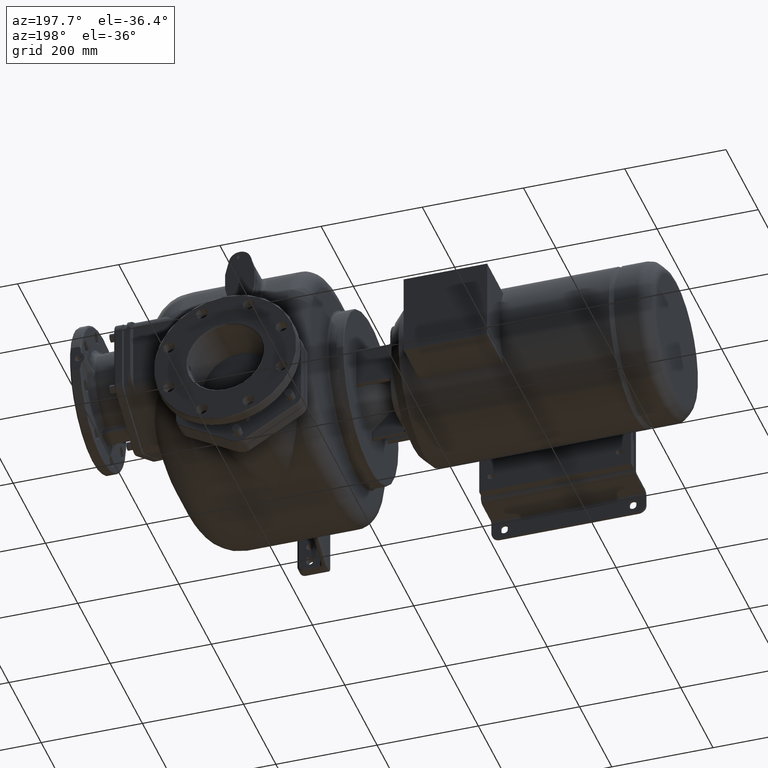
[diagram: clean part render]
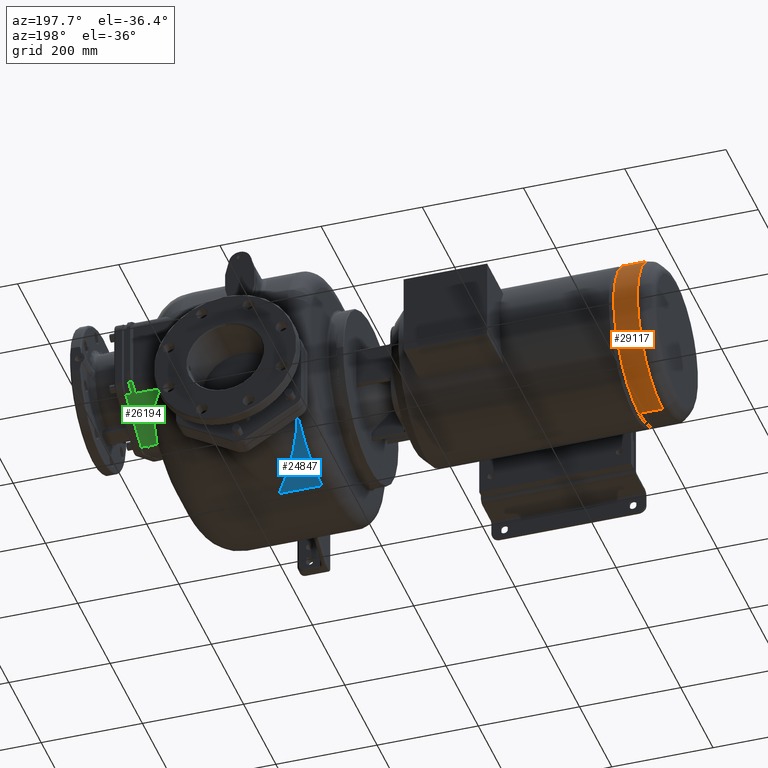
[diagram: same view with three faces highlighted in distinct colors, each labeled with its STEP entity id]
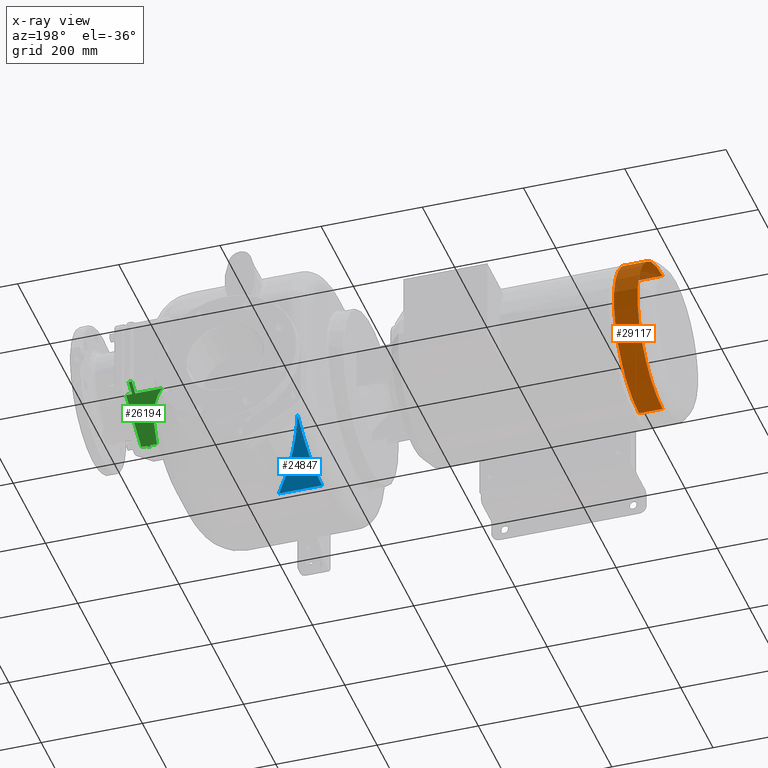
[diagram: x-ray of the same camera — body ghosted, the three highlighted faces saturated]
A machine part, auxiliary view with three faces highlighted in distinct colors.
The next image is the same camera in x-ray (body ghosted, the three faces saturated) — at least one of them is partly hidden behind the body in this view.
Their STEP definitions:

[orange] entity #29117 — the highlighted cylindrical surface (partial cylindrical patch) has radius 155.5 mm, axis along (1, 0, 0).
#11143=CARTESIAN_POINT('',(-7.652157673827E2,2.3E2,0.E0));
#11144=DIRECTION('',(1.E0,0.E0,0.E0));
#11145=DIRECTION('',(0.E0,0.E0,-1.E0));
#11146=AXIS2_PLACEMENT_3D('',#11143,#11144,#11145);
#11148=DIRECTION('',(1.E0,2.068548104365E-14,0.E0));
#11149=VECTOR('',#11148,4.671576738268E1);
#11150=CARTESIAN_POINT('',(-7.652157673827E2,2.3E2,-1.555E2));
#11151=LINE('',#11150,#11149);
#11152=CARTESIAN_POINT('',(-7.185E2,2.3E2,0.E0));
#11153=DIRECTION('',(1.E0,0.E0,0.E0));
#11154=DIRECTION('',(0.E0,0.E0,-1.E0));
#11155=AXIS2_PLACEMENT_3D('',#11152,#11153,#11154);
#11172=DIRECTION('',(1.E0,-2.129387754493E-14,0.E0));
#11173=VECTOR('',#11172,4.671576738268E1);
#11174=CARTESIAN_POINT('',(-7.652157673827E2,2.3E2,1.555E2));
#11175=LINE('',#11174,#11173);
#17196=CARTESIAN_POINT('',(-7.185E2,2.3E2,-1.555E2));
#17197=CARTESIAN_POINT('',(-7.185E2,2.3E2,1.555E2));
#17198=VERTEX_POINT('',#17196);
#17199=VERTEX_POINT('',#17197);
#17208=CARTESIAN_POINT('',(-7.652157673827E2,2.3E2,1.555E2));
#17209=CARTESIAN_POINT('',(-7.652157673827E2,2.3E2,-1.555E2));
#17210=VERTEX_POINT('',#17208);
#17211=VERTEX_POINT('',#17209);
#29103=CARTESIAN_POINT('',(-7.935E2,2.3E2,0.E0));
#29104=DIRECTION('',(1.E0,0.E0,0.E0));
#29105=DIRECTION('',(0.E0,0.E0,-1.E0));
#29106=AXIS2_PLACEMENT_3D('',#29103,#29104,#29105);
#29107=CYLINDRICAL_SURFACE('',#29106,1.555E2);
#29109=ORIENTED_EDGE('',*,*,#29108,.F.);
#29111=ORIENTED_EDGE('',*,*,#29110,.T.);
#29112=ORIENTED_EDGE('',*,*,#29092,.T.);
#29114=ORIENTED_EDGE('',*,*,#29113,.F.);
#29115=EDGE_LOOP('',(#29109,#29111,#29112,#29114));
#29116=FACE_OUTER_BOUND('',#29115,.F.);
#29117=ADVANCED_FACE('',(#29116),#29107,.T.);
#11147=CIRCLE('',#11146,1.555E2);
#11156=CIRCLE('',#11155,1.555E2);
#29092=EDGE_CURVE('',#17198,#17199,#11156,.T.);
#29108=EDGE_CURVE('',#17211,#17210,#11147,.T.);
#29110=EDGE_CURVE('',#17211,#17198,#11151,.T.);
#29113=EDGE_CURVE('',#17210,#17199,#11175,.T.);

[blue] entity #24847 — the highlighted cylindrical surface (partial cylindrical patch) has radius 225 mm, axis along (-1, 0, 0).
#7193=CARTESIAN_POINT('',(-1.199999999999E2,4.692819418235E2,
-1.916357482412E2));
#7352=DIRECTION('',(1.E0,2.430223350876E-12,0.E0));
#7353=VECTOR('',#7352,8.499999971841E1);
#7354=CARTESIAN_POINT('',(-1.2E2,3.169999999998E2,-2.51E2));
#7355=LINE('',#7354,#7353);
#7368=CARTESIAN_POINT('',(-3.500000028159E1,3.17E2,-2.51E2));
#7369=CARTESIAN_POINT('',(-3.582708071915E1,3.182961889119E2,
-2.509999212073E2));
#7370=CARTESIAN_POINT('',(-3.748065995867E1,3.208876968444E2,
-2.509776401774E2));
#7371=CARTESIAN_POINT('',(-3.995883504790E1,3.247729167932E2,
-2.508768753204E2));
#7372=CARTESIAN_POINT('',(-4.243171897962E1,3.286525945901E2,
-2.507092331353E2));
#7373=CARTESIAN_POINT('',(-4.489693843406E1,3.325243324273E2,
-2.504749488066E2));
#7374=CARTESIAN_POINT('',(-4.735194451546E1,3.363854460180E2,
-2.501744742087E2));
#7375=CARTESIAN_POINT('',(-4.979427345907E1,3.402333462160E2,
-2.498083568190E2));
#7376=CARTESIAN_POINT('',(-5.222145571751E1,3.440653877E2,-2.493772785088E2));
#7377=CARTESIAN_POINT('',(-5.463117618542E1,3.478790897175E2,
-2.488820249045E2));
#7378=CARTESIAN_POINT('',(-5.702111020025E1,3.516721195300E2,
-2.483234747981E2));
#7379=CARTESIAN_POINT('',(-5.938892079931E1,3.554420813120E2,
-2.477026257948E2));
#7380=CARTESIAN_POINT('',(-6.173233764472E1,3.591866107159E2,
-2.470205849492E2));
#7381=CARTESIAN_POINT('',(-6.404919307977E1,3.629034302859E2,
-2.462785557326E2));
#7382=CARTESIAN_POINT('',(-6.633739842406E1,3.665902986755E2,
-2.454778436238E2));
#7383=CARTESIAN_POINT('',(-6.859490294497E1,3.702449514088E2,
-2.446198707505E2));
#7384=CARTESIAN_POINT('',(-7.081986569136E1,3.738653171093E2,
-2.437061254619E2));
#7385=CARTESIAN_POINT('',(-7.301051382898E1,3.774496590596E2,
-2.427381055757E2));
#7386=CARTESIAN_POINT('',(-7.516506595326E1,3.809962032589E2,
-2.417174020321E2));
#7387=CARTESIAN_POINT('',(-7.728192737657E1,3.845033366162E2,
-2.406456459753E2));
#7388=CARTESIAN_POINT('',(-7.935978247719E1,3.879697894914E2,
-2.395244333136E2));
#7389=CARTESIAN_POINT('',(-8.139737481710E1,3.913942672666E2,
-2.383554261204E2));
#7390=CARTESIAN_POINT('',(-8.339354309494E1,3.947754939168E2,
-2.371403418762E2));
#7391=CARTESIAN_POINT('',(-8.534703519104E1,3.981119448372E2,
-2.358810588775E2));
#7392=CARTESIAN_POINT('',(-8.725641078492E1,4.014021153144E2,
-2.345795336541E2));
#7393=CARTESIAN_POINT('',(-8.912039289351E1,4.046445798620E2,
-2.332377809469E2));
#7394=CARTESIAN_POINT('',(-9.093830040134E1,4.078388010128E2,
-2.318575085342E2));
#7395=CARTESIAN_POINT('',(-9.270952468696E1,4.109842228916E2,
-2.304404523677E2));
#7396=CARTESIAN_POINT('',(-9.443355126790E1,4.140803358593E2,
-2.289883532550E2));
#7397=CARTESIAN_POINT('',(-9.610981038991E1,4.171263135108E2,
-2.275031357364E2));
#7398=CARTESIAN_POINT('',(-9.773756710016E1,4.201213417824E2,
-2.259867721510E2));
#7399=CARTESIAN_POINT('',(-9.931613342524E1,4.230646863540E2,
-2.244412511369E2));
#7400=CARTESIAN_POINT('',(-1.008453708547E2,4.259564202544E2,
-2.228681665590E2));
#7401=CARTESIAN_POINT('',(-1.023252106368E2,4.287966148245E2,
-2.212691037153E2));
#7402=CARTESIAN_POINT('',(-1.037556568343E2,4.315853579227E2,
-2.196456333960E2));
#7403=CARTESIAN_POINT('',(-1.051366333611E2,4.343223626505E2,
-2.179995518936E2));
#7404=CARTESIAN_POINT('',(-1.064679625587E2,4.370073396111E2,
-2.163326872347E2));
#7405=CARTESIAN_POINT('',(-1.077494619485E2,4.396401442110E2,
-2.146468065973E2));
#7406=CARTESIAN_POINT('',(-1.089813340530E2,4.422211780840E2,
-2.129433326903E2));
#7407=CARTESIAN_POINT('',(-1.101638330506E2,4.447508295629E2,
-2.112236757391E2));
#7408=CARTESIAN_POINT('',(-1.112972519266E2,4.472294460727E2,
-2.094892582530E2));
#7409=CARTESIAN_POINT('',(-1.123818865021E2,4.496571698616E2,
-2.077416407819E2));
#7410=CARTESIAN_POINT('',(-1.134179624541E2,4.520341645368E2,
-2.059823761480E2));
#7411=CARTESIAN_POINT('',(-1.144056922066E2,4.543607747901E2,
-2.042128852349E2));
#7412=CARTESIAN_POINT('',(-1.153454877462E2,4.566375745693E2,
-2.024343997297E2));
#7413=CARTESIAN_POINT('',(-1.162378001409E2,4.588651113065E2,
-2.006481484243E2));
#7414=CARTESIAN_POINT('',(-1.170831851993E2,4.610440742064E2,
-1.988552212417E2));
#7415=CARTESIAN_POINT('',(-1.178823079560E2,4.631752597286E2,
-1.970565862865E2));
#7416=CARTESIAN_POINT('',(-1.186357186731E2,4.652594084645E2,
-1.952532080006E2));
#7417=CARTESIAN_POINT('',(-1.193439112954E2,4.672971954055E2,
-1.934461165905E2));
#7418=CARTESIAN_POINT('',(-1.197862037163E2,4.686253790450E2,
-1.922393718201E2));
#7419=CARTESIAN_POINT('',(-1.199999999999E2,4.692819418235E2,
-1.916357482412E2));
#7421=CARTESIAN_POINT('',(-1.2E2,3.17E2,-2.6E1));
#7422=DIRECTION('',(-1.E0,0.E0,0.E0));
#7423=DIRECTION('',(0.E0,6.768086911486E-1,-7.361589472292E-1));
#7424=AXIS2_PLACEMENT_3D('',#7421,#7422,#7423);
#7478=CARTESIAN_POINT('',(-3.500000028159E1,3.17E2,-2.51E2));
#15795=CARTESIAN_POINT('',(-1.2E2,3.169999999998E2,-2.51E2));
#15796=VERTEX_POINT('',#15795);
#15861=VERTEX_POINT('',#7193);
#15865=VERTEX_POINT('',#7478);
#24836=CARTESIAN_POINT('',(-1.56E2,3.17E2,-2.6E1));
#24837=DIRECTION('',(-1.E0,0.E0,0.E0));
#24838=DIRECTION('',(0.E0,0.E0,1.E0));
#24839=AXIS2_PLACEMENT_3D('',#24836,#24837,#24838);
#24840=CYLINDRICAL_SURFACE('',#24839,2.25E2);
#24842=ORIENTED_EDGE('',*,*,#24841,.T.);
#24843=ORIENTED_EDGE('',*,*,#24735,.T.);
#24844=ORIENTED_EDGE('',*,*,#24825,.T.);
#24845=EDGE_LOOP('',(#24842,#24843,#24844));
#24846=FACE_OUTER_BOUND('',#24845,.F.);
#24847=ADVANCED_FACE('',(#24846),#24840,.T.);
#7420=B_SPLINE_CURVE_WITH_KNOTS('',3,(#7368,#7369,#7370,#7371,#7372,#7373,#7374,
#7375,#7376,#7377,#7378,#7379,#7380,#7381,#7382,#7383,#7384,#7385,#7386,#7387,
#7388,#7389,#7390,#7391,#7392,#7393,#7394,#7395,#7396,#7397,#7398,#7399,#7400,
#7401,#7402,#7403,#7404,#7405,#7406,#7407,#7408,#7409,#7410,#7411,#7412,#7413,
#7414,#7415,#7416,#7417,#7418,#7419),.UNSPECIFIED.,.F.,.F.,(4,1,1,1,1,1,1,1,1,1,
1,1,1,1,1,1,1,1,1,1,1,1,1,1,1,1,1,1,1,1,1,1,1,1,1,1,1,1,1,1,1,1,1,1,1,1,1,1,1,
4),(0.E0,2.040816326531E-2,4.081632653061E-2,6.122448979592E-2,
8.163265306122E-2,1.020408163265E-1,1.224489795918E-1,1.428571428571E-1,
1.632653061224E-1,1.836734693878E-1,2.040816326531E-1,2.244897959184E-1,
2.448979591837E-1,2.653061224490E-1,2.857142857143E-1,3.061224489796E-1,
3.265306122449E-1,3.469387755102E-1,3.673469387755E-1,3.877551020408E-1,
4.081632653061E-1,4.285714285714E-1,4.489795918367E-1,4.693877551020E-1,
4.897959183673E-1,5.102040816327E-1,5.306122448980E-1,5.510204081633E-1,
5.714285714286E-1,5.918367346939E-1,6.122448979592E-1,6.326530612245E-1,
6.530612244898E-1,6.734693877551E-1,6.938775510204E-1,7.142857142857E-1,
7.346938775510E-1,7.551020408163E-1,7.755102040816E-1,7.959183673469E-1,
8.163265306122E-1,8.367346938776E-1,8.571428571429E-1,8.775510204082E-1,
8.979591836735E-1,9.183673469388E-1,9.387755102041E-1,9.591836734694E-1,
9.795918367347E-1,1.E0),.UNSPECIFIED.);
#7425=CIRCLE('',#7424,2.25E2);
#24735=EDGE_CURVE('',#15861,#15796,#7425,.T.);
#24825=EDGE_CURVE('',#15796,#15865,#7355,.T.);
#24841=EDGE_CURVE('',#15865,#15861,#7420,.T.);

[green] entity #26194 — the highlighted planar face has unit normal (0, 0.5, -0.866).
#6401=DIRECTION('',(0.E0,-8.660254037844E-1,-5.E-1));
#6402=VECTOR('',#6401,2.540341184434E1);
#6403=CARTESIAN_POINT('',(1.85E2,5.395E2,-9.557070743735E1));
#6404=LINE('',#6403,#6402);
#6455=CARTESIAN_POINT('',(1.322602704036E2,5.175E2,-1.082724133595E2));
#6473=DIRECTION('',(1.E0,-7.760233488678E-13,-4.480995934608E-13));
#6474=VECTOR('',#6473,5.273972959640E1);
#6475=CARTESIAN_POINT('',(1.322602704036E2,5.175E2,-1.082724133595E2));
#6476=LINE('',#6475,#6474);
#8839=DIRECTION('',(0.E0,-8.660254037844E-1,-5.E-1));
#8840=VECTOR('',#8839,2.540341184434E1);
#8841=CARTESIAN_POINT('',(1.915E2,5.395E2,-9.557070743735E1));
#8842=LINE('',#8841,#8840);
#8865=DIRECTION('',(1.E0,0.E0,0.E0));
#8866=VECTOR('',#8865,1.2E1);
#8867=CARTESIAN_POINT('',(1.915E2,4.225E2,-1.631206889325E2));
#8868=LINE('',#8867,#8866);
#8869=DIRECTION('',(0.E0,-8.660254037844E-1,-5.E-1));
#8870=VECTOR('',#8869,1.096965511460E2);
#8871=CARTESIAN_POINT('',(2.035E2,5.175E2,-1.082724133595E2));
#8872=LINE('',#8871,#8870);
#8873=DIRECTION('',(1.E0,0.E0,0.E0));
#8874=VECTOR('',#8873,1.2E1);
#8875=CARTESIAN_POINT('',(1.915E2,5.175E2,-1.082724133595E2));
#8876=LINE('',#8875,#8874);
#8877=CARTESIAN_POINT('',(1.723429341518E2,4.225E2,-1.631206889325E2));
#8878=CARTESIAN_POINT('',(1.722471693563E2,4.240290379509E2,-1.622378984797E2));
#8879=CARTESIAN_POINT('',(1.720358226118E2,4.270181153760E2,-1.605121537948E2));
#8880=CARTESIAN_POINT('',(1.716648855075E2,4.312914997778E2,-1.580449141717E2));
#8881=CARTESIAN_POINT('',(1.712449937903E2,4.353653778566E2,-1.556928595631E2));
#8882=CARTESIAN_POINT('',(1.707801770076E2,4.392469782448E2,-1.534518165349E2));
#8883=CARTESIAN_POINT('',(1.702747414097E2,4.429444281056E2,-1.513170928623E2));
#8884=CARTESIAN_POINT('',(1.697321372109E2,4.464678026127E2,-1.492828716422E2));
#8885=CARTESIAN_POINT('',(1.691551427405E2,4.498280757901E2,-1.473428170187E2));
#8886=CARTESIAN_POINT('',(1.685465762652E2,4.530363913907E2,-1.454904951430E2));
#8887=CARTESIAN_POINT('',(1.679086920013E2,4.561025642375E2,-1.437202394246E2));
#8888=CARTESIAN_POINT('',(1.672433250885E2,4.590361877936E2,-1.420265110748E2));
#8889=CARTESIAN_POINT('',(1.665520707333E2,4.618471729425E2,-1.404035880423E2));
#8890=CARTESIAN_POINT('',(1.658362237012E2,4.645453404168E2,-1.388458003247E2));
#8891=CARTESIAN_POINT('',(1.650970361072E2,4.671375897668E2,-1.373491644647E2));
#8892=CARTESIAN_POINT('',(1.643353678468E2,4.696312236062E2,-1.359094642962E2));
#8893=CARTESIAN_POINT('',(1.635522933509E2,4.720321838710E2,-1.345232692411E2));
#8894=CARTESIAN_POINT('',(1.627487586530E2,4.743462011859E2,-1.331872707214E2));
#8895=CARTESIAN_POINT('',(1.619255835079E2,4.765787808482E2,-1.318982902524E2));
#8896=CARTESIAN_POINT('',(1.610837780148E2,4.787334423860E2,-1.306542958335E2));
#8897=CARTESIAN_POINT('',(1.602241140358E2,4.808140241651E2,-1.294530713833E2));
#8898=CARTESIAN_POINT('',(1.593472662582E2,4.828242889708E2,-1.282924444566E2));
#8899=CARTESIAN_POINT('',(1.584539503510E2,4.847675822615E2,-1.271704835521E2));
#8900=CARTESIAN_POINT('',(1.575447230177E2,4.866473362284E2,-1.260852070933E2));
#8901=CARTESIAN_POINT('',(1.566198636324E2,4.884670974804E2,-1.250345674446E2));
#8902=CARTESIAN_POINT('',(1.556800751596E2,4.902288693785E2,-1.240174079650E2));
#8903=CARTESIAN_POINT('',(1.547261167371E2,4.919345124920E2,-1.230326544542E2));
#8904=CARTESIAN_POINT('',(1.537586024325E2,4.935860250098E2,-1.220791532575E2));
#8905=CARTESIAN_POINT('',(1.527780939787E2,4.951853575151E2,-1.211557782050E2));
#8906=CARTESIAN_POINT('',(1.517852262592E2,4.967342353416E2,-1.202615331750E2));
#8907=CARTESIAN_POINT('',(1.507805184266E2,4.982344028730E2,-1.193954110469E2));
#8908=CARTESIAN_POINT('',(1.497643777295E2,4.996874839026E2,-1.185564743233E2));
#8909=CARTESIAN_POINT('',(1.487371188393E2,5.010951203610E2,-1.177437750351E2));
#8910=CARTESIAN_POINT('',(1.476989884350E2,5.024589023999E2,-1.169563951079E2));
#8911=CARTESIAN_POINT('',(1.466501490161E2,5.037803998338E2,-1.161934282086E2));
#8912=CARTESIAN_POINT('',(1.455904525418E2,5.050614208940E2,-1.154538303547E2));
#8913=CARTESIAN_POINT('',(1.445204314674E2,5.063027821188E2,-1.147371301174E2));
#8914=CARTESIAN_POINT('',(1.434423290886E2,5.075033527125E2,-1.140439803620E2));
#8915=CARTESIAN_POINT('',(1.423574058943E2,5.086633355539E2,-1.133742639562E2));
#8916=CARTESIAN_POINT('',(1.412650910494E2,5.097848218733E2,-1.127267735278E2));
#8917=CARTESIAN_POINT('',(1.401649618747E2,5.108695143496E2,-1.121005260347E2));
#8918=CARTESIAN_POINT('',(1.390567485803E2,5.119188056040E2,-1.114947174464E2));
#8919=CARTESIAN_POINT('',(1.379398279629E2,5.129342670432E2,-1.109084405113E2));
#8920=CARTESIAN_POINT('',(1.368147904826E2,5.139162792403E2,-1.103414755044E2));
#8921=CARTESIAN_POINT('',(1.356830728787E2,5.148645030989E2,-1.097940182062E2));
#8922=CARTESIAN_POINT('',(1.345459426762E2,5.157788302359E2,-1.092661311810E2));
#8923=CARTESIAN_POINT('',(1.334046204412E2,5.166592433604E2,-1.087578244508E2));
#8924=CARTESIAN_POINT('',(1.326419873609E2,5.172234447130E2,-1.084320825878E2));
#8925=CARTESIAN_POINT('',(1.322602704036E2,5.175E2,-1.082724133595E2));
#8927=DIRECTION('',(1.E0,0.E0,0.E0));
#8928=VECTOR('',#8927,6.5E0);
#8929=CARTESIAN_POINT('',(1.85E2,4.205E2,-1.642753894709E2));
#8930=LINE('',#8929,#8928);
#8936=DIRECTION('',(0.E0,-8.660254037844E-1,-5.E-1));
#8937=VECTOR('',#8936,2.309401076758E0);
#8938=CARTESIAN_POINT('',(1.915E2,4.225E2,-1.631206889325E2));
#8939=LINE('',#8938,#8937);
#9775=DIRECTION('',(0.E0,-8.660254037844E-1,-5.E-1));
#9776=VECTOR('',#9775,2.309401076758E0);
#9777=CARTESIAN_POINT('',(1.85E2,4.225E2,-1.631206889325E2));
#9778=LINE('',#9777,#9776);
#9784=DIRECTION('',(-1.E0,-4.401221511507E-13,-2.537438932655E-13));
#9785=VECTOR('',#9784,1.265706584819E1);
#9786=CARTESIAN_POINT('',(1.85E2,4.225E2,-1.631206889325E2));
#9787=LINE('',#9786,#9785);
#9874=DIRECTION('',(1.E0,0.E0,0.E0));
#9875=VECTOR('',#9874,6.5E0);
#9876=CARTESIAN_POINT('',(1.85E2,5.395E2,-9.557070743735E1));
#9877=LINE('',#9876,#9875);
#16270=VERTEX_POINT('',#6455);
#16273=VERTEX_POINT('',#8877);
#16942=CARTESIAN_POINT('',(1.85E2,5.395E2,-9.557070743735E1));
#16944=VERTEX_POINT('',#16942);
#16961=CARTESIAN_POINT('',(1.85E2,4.205E2,-1.642753894709E2));
#16963=VERTEX_POINT('',#16961);
#16966=CARTESIAN_POINT('',(1.915E2,5.395E2,-9.557070743735E1));
#16968=VERTEX_POINT('',#16966);
#16985=CARTESIAN_POINT('',(1.915E2,4.205E2,-1.642753894709E2));
#16987=VERTEX_POINT('',#16985);
#17073=CARTESIAN_POINT('',(1.85E2,4.225E2,-1.631206889325E2));
#17075=VERTEX_POINT('',#17073);
#17077=CARTESIAN_POINT('',(1.85E2,5.175E2,-1.082724133595E2));
#17078=VERTEX_POINT('',#17077);
#17129=CARTESIAN_POINT('',(2.035E2,5.175E2,-1.082724133595E2));
#17130=CARTESIAN_POINT('',(2.035E2,4.225E2,-1.631206889325E2));
#17131=VERTEX_POINT('',#17129);
#17132=VERTEX_POINT('',#17130);
#17185=CARTESIAN_POINT('',(1.915E2,5.175E2,-1.082724133595E2));
#17186=VERTEX_POINT('',#17185);
#17188=CARTESIAN_POINT('',(1.915E2,4.225E2,-1.631206889325E2));
#17190=VERTEX_POINT('',#17188);
#26167=CARTESIAN_POINT('',(1.85E2,4.1E2,-1.703375672974E2));
#26168=DIRECTION('',(0.E0,5.E-1,-8.660254037844E-1));
#26169=DIRECTION('',(0.E0,8.660254037844E-1,5.E-1));
#26170=AXIS2_PLACEMENT_3D('',#26167,#26168,#26169);
#26171=PLANE('',#26170);
#26173=ORIENTED_EDGE('',*,*,#26172,.F.);
#26175=ORIENTED_EDGE('',*,*,#26174,.T.);
#26177=ORIENTED_EDGE('',*,*,#26176,.F.);
#26178=ORIENTED_EDGE('',*,*,#26159,.F.);
#26179=ORIENTED_EDGE('',*,*,#26131,.F.);
#26181=ORIENTED_EDGE('',*,*,#26180,.F.);
#26182=ORIENTED_EDGE('',*,*,#24009,.T.);
#26183=ORIENTED_EDGE('',*,*,#24035,.F.);
#26185=ORIENTED_EDGE('',*,*,#26184,.F.);
#26187=ORIENTED_EDGE('',*,*,#26186,.F.);
#26189=ORIENTED_EDGE('',*,*,#26188,.T.);
#26191=ORIENTED_EDGE('',*,*,#26190,.T.);
#26192=EDGE_LOOP('',(#26173,#26175,#26177,#26178,#26179,#26181,#26182,#26183,
#26185,#26187,#26189,#26191));
#26193=FACE_OUTER_BOUND('',#26192,.F.);
#26194=ADVANCED_FACE('',(#26193),#26171,.T.);
#8926=B_SPLINE_CURVE_WITH_KNOTS('',3,(#8877,#8878,#8879,#8880,#8881,#8882,#8883,
#8884,#8885,#8886,#8887,#8888,#8889,#8890,#8891,#8892,#8893,#8894,#8895,#8896,
#8897,#8898,#8899,#8900,#8901,#8902,#8903,#8904,#8905,#8906,#8907,#8908,#8909,
#8910,#8911,#8912,#8913,#8914,#8915,#8916,#8917,#8918,#8919,#8920,#8921,#8922,
#8923,#8924,#8925),.UNSPECIFIED.,.F.,.F.,(4,1,1,1,1,1,1,1,1,1,1,1,1,1,1,1,1,1,1,
1,1,1,1,1,1,1,1,1,1,1,1,1,1,1,1,1,1,1,1,1,1,1,1,1,1,1,4),(0.E0,
2.173913043478E-2,4.347826086957E-2,6.521739130435E-2,8.695652173913E-2,
1.086956521739E-1,1.304347826087E-1,1.521739130435E-1,1.739130434783E-1,
1.956521739130E-1,2.173913043478E-1,2.391304347826E-1,2.608695652174E-1,
2.826086956522E-1,3.043478260870E-1,3.260869565217E-1,3.478260869565E-1,
3.695652173913E-1,3.913043478261E-1,4.130434782609E-1,4.347826086957E-1,
4.565217391304E-1,4.782608695652E-1,5.E-1,5.217391304348E-1,5.434782608696E-1,
5.652173913043E-1,5.869565217391E-1,6.086956521739E-1,6.304347826087E-1,
6.521739130435E-1,6.739130434783E-1,6.956521739130E-1,7.173913043478E-1,
7.391304347826E-1,7.608695652174E-1,7.826086956522E-1,8.043478260870E-1,
8.260869565217E-1,8.478260869565E-1,8.695652173913E-1,8.913043478261E-1,
9.130434782609E-1,9.347826086957E-1,9.565217391304E-1,9.782608695652E-1,1.E0),
.UNSPECIFIED.);
#24009=EDGE_CURVE('',#16944,#17078,#6404,.T.);
#24035=EDGE_CURVE('',#16270,#17078,#6476,.T.);
#26131=EDGE_CURVE('',#16968,#17186,#8842,.T.);
#26159=EDGE_CURVE('',#17186,#17131,#8876,.T.);
#26172=EDGE_CURVE('',#17190,#16987,#8939,.T.);
#26174=EDGE_CURVE('',#17190,#17132,#8868,.T.);
#26176=EDGE_CURVE('',#17131,#17132,#8872,.T.);
#26180=EDGE_CURVE('',#16944,#16968,#9877,.T.);
#26184=EDGE_CURVE('',#16273,#16270,#8926,.T.);
#26186=EDGE_CURVE('',#17075,#16273,#9787,.T.);
#26188=EDGE_CURVE('',#17075,#16963,#9778,.T.);
#26190=EDGE_CURVE('',#16963,#16987,#8930,.T.);